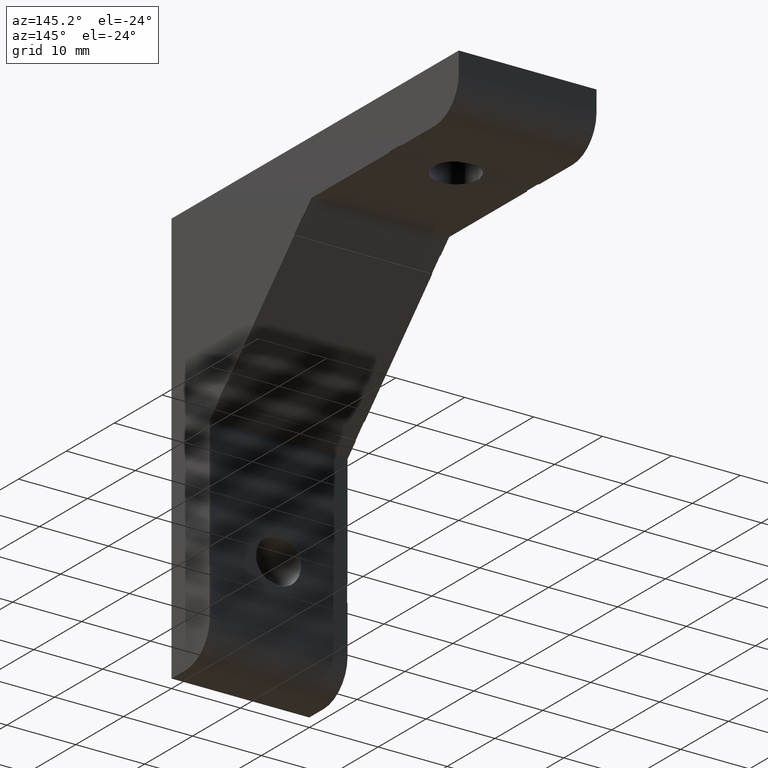
[diagram: clean part render]
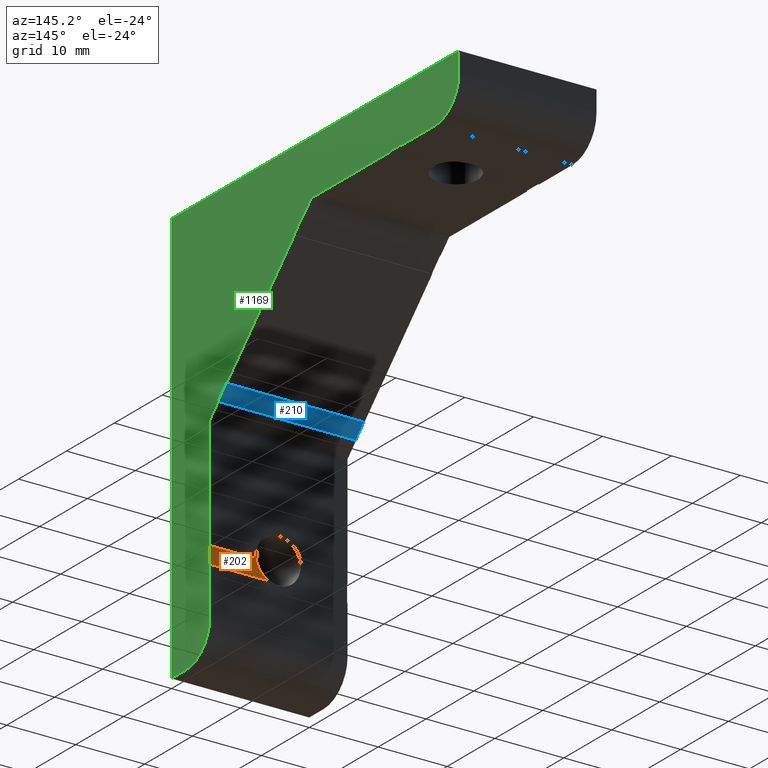
[diagram: same view with three faces highlighted in distinct colors, each labeled with its STEP entity id]
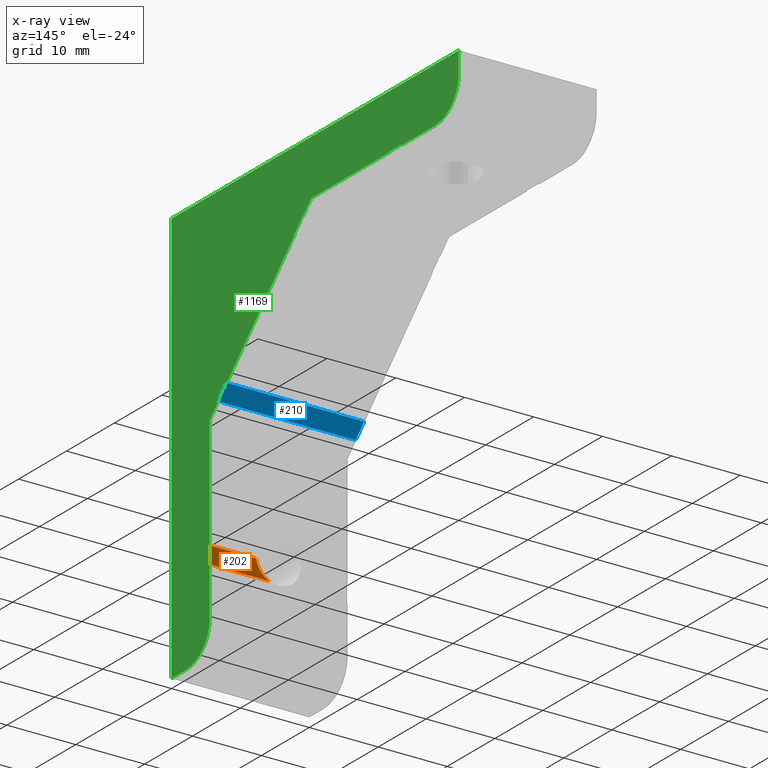
[diagram: x-ray of the same camera — body ghosted, the three highlighted faces saturated]
A machine part, auxiliary view with three faces highlighted in distinct colors.
The next image is the same camera in x-ray (body ghosted, the three faces saturated) — at least one of them is partly hidden behind the body in this view.
Their STEP definitions:

[orange] entity #202 — the highlighted planar face has unit normal (0, -1, 0).
#112 = EDGE_CURVE ( 'NONE', #948, #982, #1271, .T. ) ;
#202 = ADVANCED_FACE ( 'NONE', ( #1278 ), #917, .F. ) ;
#278 = CARTESIAN_POINT ( 'NONE',  ( 20.00000000000000000, 7.900000019999999300, -30.00000000000000000 ) ) ;
#279 = DIRECTION ( 'NONE',  ( -0.0000000000000000000, -0.0000000000000000000, -1.000000000000000000 ) ) ;
#324 = CARTESIAN_POINT ( 'NONE',  ( 15.59875000000000100, 7.900000000000000400, -48.00000000000000000 ) ) ;
#325 = DIRECTION ( 'NONE',  ( 1.000000000000000000, 0.0000000000000000000, 0.0000000000000000000 ) ) ;
#445 = CARTESIAN_POINT ( 'NONE',  ( 20.00000000000000000, 7.900000006666666700, -45.49999999666667300 ) ) ;
#446 = CARTESIAN_POINT ( 'NONE',  ( 11.24999999983503900, 7.899999999999999500, -48.00000000006872400 ) ) ;
#471 = CARTESIAN_POINT ( 'NONE',  ( 20.00000000000000000, 7.900000006666666700, -48.00000000000000700 ) ) ;
#479 = CARTESIAN_POINT ( 'NONE',  ( 13.21130814473605100, 7.899999999999999500, -45.49999999955189600 ) ) ;
#512 = CARTESIAN_POINT ( 'NONE',  ( 10.00000000000000000, 7.899999999999999500, -45.00000000000000000 ) ) ;
#513 = DIRECTION ( 'NONE',  ( -0.0000000000000000000, 1.000000000000000000, 0.0000000000000000000 ) ) ;
#514 = DIRECTION ( 'NONE',  ( 0.0000000000000000000, 0.0000000000000000000, 1.000000000000000000 ) ) ;
#589 = EDGE_LOOP ( 'NONE', ( #649, #650, #1222, #1223 ) ) ;
#649 = ORIENTED_EDGE ( 'NONE', *, *, #1004, .F. ) ;
#650 = ORIENTED_EDGE ( 'NONE', *, *, #112, .F. ) ;
#731 = AXIS2_PLACEMENT_3D ( 'NONE', #918, #920, #921 ) ;
#763 = AXIS2_PLACEMENT_3D ( 'NONE', #512, #513, #514 ) ;
#793 = EDGE_CURVE ( 'NONE', #948, #974, #1277, .T. ) ;
#814 = EDGE_CURVE ( 'NONE', #949, #974, #1085, .T. ) ;
#907 = CARTESIAN_POINT ( 'NONE',  ( 15.59875000000000100, 7.900000000000000400, -45.50000000000000000 ) ) ;
#908 = DIRECTION ( 'NONE',  ( -1.000000000000000000, -0.0000000000000000000, -0.0000000000000000000 ) ) ;
#917 = PLANE ( 'NONE',  #731 ) ;
#918 = CARTESIAN_POINT ( 'NONE',  ( 11.19750000000000200, 7.900000000000000400, -45.50000000000000000 ) ) ;
#920 = DIRECTION ( 'NONE',  ( 0.0000000000000000000, -1.000000000000000000, 0.0000000000000000000 ) ) ;
#921 = DIRECTION ( 'NONE',  ( 0.0000000000000000000, 0.0000000000000000000, -1.000000000000000000 ) ) ;
#948 = VERTEX_POINT ( 'NONE', #445 ) ;
#949 = VERTEX_POINT ( 'NONE', #446 ) ;
#974 = VERTEX_POINT ( 'NONE', #471 ) ;
#982 = VERTEX_POINT ( 'NONE', #479 ) ;
#1004 = EDGE_CURVE ( 'NONE', #982, #949, #1055, .T. ) ;
#1055 = CIRCLE ( 'NONE', #763, 3.249999999999996000 ) ;
#1079 = VECTOR ( 'NONE', #325, 1000.000000000000000 ) ;
#1085 = LINE ( 'NONE', #324, #1079 ) ;
#1222 = ORIENTED_EDGE ( 'NONE', *, *, #793, .T. ) ;
#1223 = ORIENTED_EDGE ( 'NONE', *, *, #814, .F. ) ;
#1257 = VECTOR ( 'NONE', #279, 1000.000000000000000 ) ;
#1271 = LINE ( 'NONE', #907, #1273 ) ;
#1273 = VECTOR ( 'NONE', #908, 1000.000000000000000 ) ;
#1277 = LINE ( 'NONE', #278, #1257 ) ;
#1278 = FACE_OUTER_BOUND ( 'NONE', #589, .T. ) ;

[blue] entity #210 — the highlighted planar face has unit normal (0, -0.7071, 0.7071).
#9 = CARTESIAN_POINT ( 'NONE',  ( 10.00000000000000000, 9.697056275000001300, -27.37472580500000100 ) ) ;
#10 = DIRECTION ( 'NONE',  ( 1.000000000000000000, 0.0000000000000000000, 0.0000000000000000000 ) ) ;
#128 = LINE ( 'NONE', #9, #129 ) ;
#129 = VECTOR ( 'NONE', #10, 1000.000000000000000 ) ;
#210 = ADVANCED_FACE ( 'NONE', ( #1290 ), #879, .F. ) ;
#320 = CARTESIAN_POINT ( 'NONE',  ( 0.0000000000000000000, 11.46482322000000100, -25.60695888000000400 ) ) ;
#321 = DIRECTION ( 'NONE',  ( 0.0000000000000000000, -0.7071067811865482400, -0.7071067811865469100 ) ) ;
#344 = CARTESIAN_POINT ( 'NONE',  ( 10.00000000000000000, 11.46482322800000000, -25.60695885200000500 ) ) ;
#345 = DIRECTION ( 'NONE',  ( -1.000000000000000000, -0.0000000000000000000, -0.0000000000000000000 ) ) ;
#408 = CARTESIAN_POINT ( 'NONE',  ( 19.99999999999999300, 11.46482322800000000, -25.60695885200000500 ) ) ;
#409 = DIRECTION ( 'NONE',  ( 0.0000000000000000000, -0.7071067811865482400, -0.7071067811865469100 ) ) ;
#440 = CARTESIAN_POINT ( 'NONE',  ( 0.0000000000000000000, 11.46482323300000100, -25.60695885700000600 ) ) ;
#441 = CARTESIAN_POINT ( 'NONE',  ( 19.99999999999999600, 9.697056275000001300, -27.37472580500000100 ) ) ;
#447 = CARTESIAN_POINT ( 'NONE',  ( 19.99999999999999600, 11.46482322800000000, -25.60695885200000500 ) ) ;
#473 = CARTESIAN_POINT ( 'NONE',  ( 0.0000000000000000000, 9.697056280000001700, -27.37472581000000100 ) ) ;
#629 = EDGE_LOOP ( 'NONE', ( #645, #644, #643, #642 ) ) ;
#642 = ORIENTED_EDGE ( 'NONE', *, *, #855, .T. ) ;
#643 = ORIENTED_EDGE ( 'NONE', *, *, #824, .F. ) ;
#644 = ORIENTED_EDGE ( 'NONE', *, *, #812, .F. ) ;
#645 = ORIENTED_EDGE ( 'NONE', *, *, #1014, .F. ) ;
#739 = AXIS2_PLACEMENT_3D ( 'NONE', #878, #877, #876 ) ;
#812 = EDGE_CURVE ( 'NONE', #943, #976, #1096, .T. ) ;
#824 = EDGE_CURVE ( 'NONE', #950, #943, #1149, .T. ) ;
#855 = EDGE_CURVE ( 'NONE', #950, #944, #1077, .T. ) ;
#876 = DIRECTION ( 'NONE',  ( 0.0000000000000000000, -0.7071067811865482400, -0.7071067811865468000 ) ) ;
#877 = DIRECTION ( 'NONE',  ( 0.0000000000000000000, -0.7071067811865468000, 0.7071067811865482400 ) ) ;
#878 = CARTESIAN_POINT ( 'NONE',  ( 0.0000000000000000000, 11.46482322800000000, -25.60695885200000500 ) ) ;
#879 = PLANE ( 'NONE',  #739 ) ;
#943 = VERTEX_POINT ( 'NONE', #440 ) ;
#944 = VERTEX_POINT ( 'NONE', #441 ) ;
#950 = VERTEX_POINT ( 'NONE', #447 ) ;
#976 = VERTEX_POINT ( 'NONE', #473 ) ;
#1014 = EDGE_CURVE ( 'NONE', #976, #944, #128, .T. ) ;
#1031 = VECTOR ( 'NONE', #409, 1000.000000000000000 ) ;
#1077 = LINE ( 'NONE', #408, #1031 ) ;
#1094 = VECTOR ( 'NONE', #321, 1000.000000000000000 ) ;
#1096 = LINE ( 'NONE', #320, #1094 ) ;
#1148 = VECTOR ( 'NONE', #345, 1000.000000000000000 ) ;
#1149 = LINE ( 'NONE', #344, #1148 ) ;
#1290 = FACE_OUTER_BOUND ( 'NONE', #629, .T. ) ;

[green] entity #1169 — the highlighted planar face has unit normal (-1, 0, 0).
#3 = CARTESIAN_POINT ( 'NONE',  ( 20.00000000000000000, 11.50017856700000100, -25.64231419100000100 ) ) ;
#4 = DIRECTION ( 'NONE',  ( -0.0000000000000000000, 0.7071067811865822100, -0.7071067811865128200 ) ) ;
#21 = PLANE ( 'NONE',  #769 ) ;
#22 = CARTESIAN_POINT ( 'NONE',  ( 20.00000000000000000, 0.0000000000000000000, -60.00000000000000000 ) ) ;
#23 = DIRECTION ( 'NONE',  ( -1.000000000000000000, 0.0000000000000000000, 0.0000000000000000000 ) ) ;
#24 = DIRECTION ( 'NONE',  ( 0.0000000000000000000, 0.0000000000000000000, 1.000000000000000000 ) ) ;
#113 = EDGE_CURVE ( 'NONE', #948, #958, #1274, .T. ) ;
#136 = FACE_OUTER_BOUND ( 'NONE', #586, .T. ) ;
#242 = CARTESIAN_POINT ( 'NONE',  ( 20.00000000000000000, 9.732411614000000100, -27.41008114399999600 ) ) ;
#243 = DIRECTION ( 'NONE',  ( -0.0000000000000000000, -0.7071067811865735500, 0.7071067811865214800 ) ) ;
#251 = CARTESIAN_POINT ( 'NONE',  ( 20.00000000000000400, 30.00000000000000000, -7.999999979999996600 ) ) ;
#252 = DIRECTION ( 'NONE',  ( -0.0000000000000000000, -1.000000000000000000, -0.0000000000000000000 ) ) ;
#257 = CARTESIAN_POINT ( 'NONE',  ( 20.00000000000000000, 48.00000000000000000, -30.00000000000000000 ) ) ;
#258 = DIRECTION ( 'NONE',  ( 0.0000000000000000000, 0.0000000000000000000, 1.000000000000000000 ) ) ;
#276 = CARTESIAN_POINT ( 'NONE',  ( 20.00000000000000000, 27.41008114399999600, -9.732411614000000100 ) ) ;
#277 = DIRECTION ( 'NONE',  ( -0.0000000000000000000, 0.7071067811865214800, -0.7071067811865735500 ) ) ;
#278 = CARTESIAN_POINT ( 'NONE',  ( 20.00000000000000000, 7.900000019999999300, -30.00000000000000000 ) ) ;
#279 = DIRECTION ( 'NONE',  ( -0.0000000000000000000, -0.0000000000000000000, -1.000000000000000000 ) ) ;
#282 = CARTESIAN_POINT ( 'NONE',  ( 20.00000000000000000, 7.999999980000001900, -30.00000000000000000 ) ) ;
#283 = DIRECTION ( 'NONE',  ( -0.0000000000000000000, -0.0000000000000000000, -1.000000000000000000 ) ) ;
#293 = CARTESIAN_POINT ( 'NONE',  ( 20.00000000000000000, 3.000000000000000000, -55.00000000000000000 ) ) ;
#294 = DIRECTION ( 'NONE',  ( -1.000000000000000000, -3.469446951953616700E-016, -0.0000000000000000000 ) ) ;
#295 = DIRECTION ( 'NONE',  ( 6.938893903907232300E-016, -1.000000000000000000, 0.0000000000000000000 ) ) ;
#296 = CARTESIAN_POINT ( 'NONE',  ( 20.00000000000000000, 30.00000000000000000, -60.00000000000000000 ) ) ;
#297 = DIRECTION ( 'NONE',  ( -0.0000000000000000000, -1.000000000000000000, -0.0000000000000000000 ) ) ;
#309 = CARTESIAN_POINT ( 'NONE',  ( 20.00000000000000000, 55.00000000000000000, -3.000000000000000000 ) ) ;
#310 = DIRECTION ( 'NONE',  ( -1.000000000000000000, -3.469446951953613700E-016, -0.0000000000000000000 ) ) ;
#311 = DIRECTION ( 'NONE',  ( 0.0000000000000000000, -1.000000000000000000, 0.0000000000000000000 ) ) ;
#314 = CARTESIAN_POINT ( 'NONE',  ( 19.99999999999999300, 27.37472580500000100, -9.697056275000001300 ) ) ;
#315 = DIRECTION ( 'NONE',  ( 0.0000000000000000000, -0.7071067811865469100, -0.7071067811865482400 ) ) ;
#316 = CARTESIAN_POINT ( 'NONE',  ( 19.99999999999999300, 11.53553390600000100, -25.67766952999999900 ) ) ;
#317 = DIRECTION ( 'NONE',  ( -0.0000000000000000000, -0.7071067811865474600, -0.7071067811865474600 ) ) ;
#326 = CARTESIAN_POINT ( 'NONE',  ( 20.00000000000000000, 7.950000000000000200, -48.00000000000000000 ) ) ;
#327 = DIRECTION ( 'NONE',  ( -0.0000000000000000000, -1.000000000000000000, -0.0000000000000000000 ) ) ;
#342 = CARTESIAN_POINT ( 'NONE',  ( 20.00000000000000000, 25.64231419100000100, -11.50017856700000100 ) ) ;
#343 = DIRECTION ( 'NONE',  ( -0.0000000000000000000, -0.7071067811865128200, 0.7071067811865822100 ) ) ;
#354 = CARTESIAN_POINT ( 'NONE',  ( 20.00000000000000000, 60.00000000000000000, -30.00000000000000000 ) ) ;
#355 = DIRECTION ( 'NONE',  ( -0.0000000000000000000, -0.0000000000000000000, -1.000000000000000000 ) ) ;
#356 = CARTESIAN_POINT ( 'NONE',  ( 20.00000000000000000, 0.0000000000000000000, -30.00000000000000000 ) ) ;
#357 = DIRECTION ( 'NONE',  ( 0.0000000000000000000, 0.0000000000000000000, 1.000000000000000000 ) ) ;
#364 = CARTESIAN_POINT ( 'NONE',  ( 20.00000000000000400, 27.44543648299999500, -9.767766953000000600 ) ) ;
#365 = DIRECTION ( 'NONE',  ( -0.0000000000000000000, -0.7071067811865486800, -0.7071067811865464600 ) ) ;
#368 = CARTESIAN_POINT ( 'NONE',  ( 20.00000000000000000, 37.35660171799999300, -8.000000000000000000 ) ) ;
#369 = DIRECTION ( 'NONE',  ( -0.0000000000000000000, 1.000000000000000000, -0.0000000000000000000 ) ) ;
#370 = CARTESIAN_POINT ( 'NONE',  ( 20.00000000000000000, 45.50000000000000000, -7.950000000000000200 ) ) ;
#371 = DIRECTION ( 'NONE',  ( -0.0000000000000000000, -0.0000000000000000000, 1.000000000000000000 ) ) ;
#372 = CARTESIAN_POINT ( 'NONE',  ( 20.00000000000000000, 46.75000000000000000, -7.900000000000000400 ) ) ;
#373 = DIRECTION ( 'NONE',  ( 0.0000000000000000000, 1.000000000000000000, 0.0000000000000000000 ) ) ;
#374 = CARTESIAN_POINT ( 'NONE',  ( 20.00000000000000000, 30.00000000000000000, 0.0000000000000000000 ) ) ;
#375 = DIRECTION ( 'NONE',  ( -0.0000000000000000000, -1.000000000000000000, -0.0000000000000000000 ) ) ;
#408 = CARTESIAN_POINT ( 'NONE',  ( 19.99999999999999300, 11.46482322800000000, -25.60695885200000500 ) ) ;
#409 = DIRECTION ( 'NONE',  ( 0.0000000000000000000, -0.7071067811865482400, -0.7071067811865469100 ) ) ;
#414 = CARTESIAN_POINT ( 'NONE',  ( 20.00000000000000400, 8.000000000000000000, -29.21320343600000100 ) ) ;
#415 = DIRECTION ( 'NONE',  ( -0.0000000000000000000, -0.7071067811865464600, -0.7071067811865486800 ) ) ;
#418 = CARTESIAN_POINT ( 'NONE',  ( 20.00000000000000000, 7.999999980000001900, -30.00000000000000000 ) ) ;
#419 = DIRECTION ( 'NONE',  ( -0.0000000000000000000, -0.0000000000000000000, -1.000000000000000000 ) ) ;
#421 = CARTESIAN_POINT ( 'NONE',  ( 20.00000000000000400, 29.21320343600000100, -8.000000000000000000 ) ) ;
#424 = CARTESIAN_POINT ( 'NONE',  ( 19.99999999999999600, 11.53553390600000100, -25.67766952999999900 ) ) ;
#425 = CARTESIAN_POINT ( 'NONE',  ( 20.00000000000000400, 7.999999990000000900, -29.21320344600000100 ) ) ;
#429 = CARTESIAN_POINT ( 'NONE',  ( 20.00000000000000400, 27.44543648299999500, -9.767766953000000600 ) ) ;
#431 = CARTESIAN_POINT ( 'NONE',  ( 20.00000000000000400, 9.767766953000000600, -27.44543648299999500 ) ) ;
#432 = CARTESIAN_POINT ( 'NONE',  ( 20.00000000000000000, 45.50000000000000700, -7.900000000000000400 ) ) ;
#434 = CARTESIAN_POINT ( 'NONE',  ( 20.00000000000000000, 0.0000000000000000000, -60.00000000000000000 ) ) ;
#435 = CARTESIAN_POINT ( 'NONE',  ( 20.00000000000000000, 45.50000000000000700, -8.000000000000000000 ) ) ;
#441 = CARTESIAN_POINT ( 'NONE',  ( 19.99999999999999600, 9.697056275000001300, -27.37472580500000100 ) ) ;
#444 = CARTESIAN_POINT ( 'NONE',  ( 19.99999999999999600, 60.00000000000000000, -3.000000000000000000 ) ) ;
#445 = CARTESIAN_POINT ( 'NONE',  ( 20.00000000000000000, 7.900000006666666700, -45.49999999666667300 ) ) ;
#447 = CARTESIAN_POINT ( 'NONE',  ( 19.99999999999999600, 11.46482322800000000, -25.60695885200000500 ) ) ;
#448 = CARTESIAN_POINT ( 'NONE',  ( 20.00000000000000000, 3.000000000000000000, -60.00000000000000000 ) ) ;
#449 = CARTESIAN_POINT ( 'NONE',  ( 20.00000000000000000, 55.00000000000000000, -7.999999989999999200 ) ) ;
#450 = CARTESIAN_POINT ( 'NONE',  ( 19.99999999999999600, 25.67766952999999600, -11.53553390600000300 ) ) ;
#451 = CARTESIAN_POINT ( 'NONE',  ( 19.99999999999999600, 25.60695885200000500, -11.46482322800000000 ) ) ;
#452 = CARTESIAN_POINT ( 'NONE',  ( 19.99999999999999600, 7.999999990000000900, -55.00000000051275600 ) ) ;
#454 = CARTESIAN_POINT ( 'NONE',  ( 19.99999999999999600, 27.37472580500000100, -9.697056275000001300 ) ) ;
#455 = CARTESIAN_POINT ( 'NONE',  ( 20.00000000000000000, 7.999999993333334600, -45.50000000000000700 ) ) ;
#459 = CARTESIAN_POINT ( 'NONE',  ( 20.00000000000000400, 48.00000000000000700, -7.999999986666665600 ) ) ;
#468 = CARTESIAN_POINT ( 'NONE',  ( 20.00000000000000000, 7.999999993333334600, -48.00000000000000700 ) ) ;
#470 = CARTESIAN_POINT ( 'NONE',  ( 20.00000000000000000, 60.00000000000000000, 0.0000000000000000000 ) ) ;
#471 = CARTESIAN_POINT ( 'NONE',  ( 20.00000000000000000, 7.900000006666666700, -48.00000000000000700 ) ) ;
#483 = CARTESIAN_POINT ( 'NONE',  ( 20.00000000000000000, 0.0000000000000000000, 0.0000000000000000000 ) ) ;
#487 = CARTESIAN_POINT ( 'NONE',  ( 20.00000000000000000, 48.00000000000000700, -7.900000006666666700 ) ) ;
#562 = ORIENTED_EDGE ( 'NONE', *, *, #800, .F. ) ;
#563 = ORIENTED_EDGE ( 'NONE', *, *, #795, .F. ) ;
#564 = ORIENTED_EDGE ( 'NONE', *, *, #815, .T. ) ;
#565 = ORIENTED_EDGE ( 'NONE', *, *, #793, .F. ) ;
#586 = EDGE_LOOP ( 'NONE', ( #1201, #1202, #1203, #1204, #1205, #1206, #1207, #1208, #1209, #1210, #1211, #1212, #1213, #1214, #1215, #1216, #1217, #1218, #1219, #1220, #1221, #562, #563, #564, #565 ) ) ;
#717 = EDGE_CURVE ( 'NONE', #895, #944, #1319, .T. ) ;
#721 = EDGE_CURVE ( 'NONE', #952, #962, #1329, .T. ) ;
#724 = EDGE_CURVE ( 'NONE', #962, #990, #1315, .T. ) ;
#754 = AXIS2_PLACEMENT_3D ( 'NONE', #293, #294, #295 ) ;
#756 = AXIS2_PLACEMENT_3D ( 'NONE', #309, #310, #311 ) ;
#769 = AXIS2_PLACEMENT_3D ( 'NONE', #22, #23, #24 ) ;
#792 = EDGE_CURVE ( 'NONE', #957, #893, #1254, .T. ) ;
#793 = EDGE_CURVE ( 'NONE', #948, #974, #1277, .T. ) ;
#795 = EDGE_CURVE ( 'NONE', #971, #955, #1084, .T. ) ;
#800 = EDGE_CURVE ( 'NONE', #955, #951, #1152, .T. ) ;
#801 = EDGE_CURVE ( 'NONE', #951, #899, #1123, .T. ) ;
#807 = EDGE_CURVE ( 'NONE', #947, #952, #1114, .T. ) ;
#809 = EDGE_CURVE ( 'NONE', #957, #954, #1110, .T. ) ;
#810 = EDGE_CURVE ( 'NONE', #953, #885, #1106, .T. ) ;
#815 = EDGE_CURVE ( 'NONE', #971, #974, #1080, .T. ) ;
#823 = EDGE_CURVE ( 'NONE', #953, #954, #1153, .T. ) ;
#829 = EDGE_CURVE ( 'NONE', #973, #947, #1133, .T. ) ;
#830 = EDGE_CURVE ( 'NONE', #899, #986, #1131, .T. ) ;
#834 = EDGE_CURVE ( 'NONE', #881, #893, #1021, .T. ) ;
#836 = EDGE_CURVE ( 'NONE', #881, #901, #1018, .T. ) ;
#837 = EDGE_CURVE ( 'NONE', #901, #896, #1020, .T. ) ;
#838 = EDGE_CURVE ( 'NONE', #896, #990, #1024, .T. ) ;
#839 = EDGE_CURVE ( 'NONE', #973, #986, #1028, .T. ) ;
#855 = EDGE_CURVE ( 'NONE', #950, #944, #1077, .T. ) ;
#858 = EDGE_CURVE ( 'NONE', #895, #886, #1073, .T. ) ;
#860 = EDGE_CURVE ( 'NONE', #886, #958, #1069, .T. ) ;
#881 = VERTEX_POINT ( 'NONE', #421 ) ;
#885 = VERTEX_POINT ( 'NONE', #424 ) ;
#886 = VERTEX_POINT ( 'NONE', #425 ) ;
#893 = VERTEX_POINT ( 'NONE', #429 ) ;
#895 = VERTEX_POINT ( 'NONE', #431 ) ;
#896 = VERTEX_POINT ( 'NONE', #432 ) ;
#899 = VERTEX_POINT ( 'NONE', #434 ) ;
#901 = VERTEX_POINT ( 'NONE', #435 ) ;
#910 = CARTESIAN_POINT ( 'NONE',  ( 20.00000000000000000, 7.950000000000000200, -45.50000000000000000 ) ) ;
#911 = DIRECTION ( 'NONE',  ( 0.0000000000000000000, 1.000000000000000000, 0.0000000000000000000 ) ) ;
#944 = VERTEX_POINT ( 'NONE', #441 ) ;
#947 = VERTEX_POINT ( 'NONE', #444 ) ;
#948 = VERTEX_POINT ( 'NONE', #445 ) ;
#950 = VERTEX_POINT ( 'NONE', #447 ) ;
#951 = VERTEX_POINT ( 'NONE', #448 ) ;
#952 = VERTEX_POINT ( 'NONE', #449 ) ;
#953 = VERTEX_POINT ( 'NONE', #450 ) ;
#954 = VERTEX_POINT ( 'NONE', #451 ) ;
#955 = VERTEX_POINT ( 'NONE', #452 ) ;
#957 = VERTEX_POINT ( 'NONE', #454 ) ;
#958 = VERTEX_POINT ( 'NONE', #455 ) ;
#962 = VERTEX_POINT ( 'NONE', #459 ) ;
#971 = VERTEX_POINT ( 'NONE', #468 ) ;
#973 = VERTEX_POINT ( 'NONE', #470 ) ;
#974 = VERTEX_POINT ( 'NONE', #471 ) ;
#986 = VERTEX_POINT ( 'NONE', #483 ) ;
#990 = VERTEX_POINT ( 'NONE', #487 ) ;
#1011 = EDGE_CURVE ( 'NONE', #950, #885, #1050, .T. ) ;
#1018 = LINE ( 'NONE', #368, #1019 ) ;
#1019 = VECTOR ( 'NONE', #369, 1000.000000000000000 ) ;
#1020 = LINE ( 'NONE', #370, #1025 ) ;
#1021 = LINE ( 'NONE', #364, #1026 ) ;
#1024 = LINE ( 'NONE', #372, #1029 ) ;
#1025 = VECTOR ( 'NONE', #371, 1000.000000000000000 ) ;
#1026 = VECTOR ( 'NONE', #365, 999.9999999999998900 ) ;
#1028 = LINE ( 'NONE', #374, #1115 ) ;
#1029 = VECTOR ( 'NONE', #373, 1000.000000000000000 ) ;
#1031 = VECTOR ( 'NONE', #409, 1000.000000000000000 ) ;
#1049 = VECTOR ( 'NONE', #4, 1000.000000000000200 ) ;
#1050 = LINE ( 'NONE', #3, #1049 ) ;
#1068 = VECTOR ( 'NONE', #419, 1000.000000000000000 ) ;
#1069 = LINE ( 'NONE', #418, #1068 ) ;
#1072 = VECTOR ( 'NONE', #415, 999.9999999999998900 ) ;
#1073 = LINE ( 'NONE', #414, #1072 ) ;
#1077 = LINE ( 'NONE', #408, #1031 ) ;
#1080 = LINE ( 'NONE', #326, #1082 ) ;
#1082 = VECTOR ( 'NONE', #327, 1000.000000000000000 ) ;
#1084 = LINE ( 'NONE', #282, #1088 ) ;
#1088 = VECTOR ( 'NONE', #283, 1000.000000000000000 ) ;
#1104 = VECTOR ( 'NONE', #317, 1000.000000000000100 ) ;
#1106 = LINE ( 'NONE', #316, #1104 ) ;
#1108 = VECTOR ( 'NONE', #315, 1000.000000000000000 ) ;
#1110 = LINE ( 'NONE', #314, #1108 ) ;
#1114 = CIRCLE ( 'NONE', #756, 4.999999999999997300 ) ;
#1115 = VECTOR ( 'NONE', #375, 1000.000000000000000 ) ;
#1123 = LINE ( 'NONE', #296, #1150 ) ;
#1130 = VECTOR ( 'NONE', #357, 1000.000000000000000 ) ;
#1131 = LINE ( 'NONE', #356, #1130 ) ;
#1132 = VECTOR ( 'NONE', #355, 1000.000000000000000 ) ;
#1133 = LINE ( 'NONE', #354, #1132 ) ;
#1150 = VECTOR ( 'NONE', #297, 1000.000000000000000 ) ;
#1151 = VECTOR ( 'NONE', #343, 1000.000000000000200 ) ;
#1152 = CIRCLE ( 'NONE', #754, 4.999999999999997300 ) ;
#1153 = LINE ( 'NONE', #342, #1151 ) ;
#1169 = ADVANCED_FACE ( 'NONE', ( #136 ), #21, .F. ) ;
#1201 = ORIENTED_EDGE ( 'NONE', *, *, #113, .T. ) ;
#1202 = ORIENTED_EDGE ( 'NONE', *, *, #860, .F. ) ;
#1203 = ORIENTED_EDGE ( 'NONE', *, *, #858, .F. ) ;
#1204 = ORIENTED_EDGE ( 'NONE', *, *, #717, .T. ) ;
#1205 = ORIENTED_EDGE ( 'NONE', *, *, #855, .F. ) ;
#1206 = ORIENTED_EDGE ( 'NONE', *, *, #1011, .T. ) ;
#1207 = ORIENTED_EDGE ( 'NONE', *, *, #810, .F. ) ;
#1208 = ORIENTED_EDGE ( 'NONE', *, *, #823, .T. ) ;
#1209 = ORIENTED_EDGE ( 'NONE', *, *, #809, .F. ) ;
#1210 = ORIENTED_EDGE ( 'NONE', *, *, #792, .T. ) ;
#1211 = ORIENTED_EDGE ( 'NONE', *, *, #834, .F. ) ;
#1212 = ORIENTED_EDGE ( 'NONE', *, *, #836, .T. ) ;
#1213 = ORIENTED_EDGE ( 'NONE', *, *, #837, .T. ) ;
#1214 = ORIENTED_EDGE ( 'NONE', *, *, #838, .T. ) ;
#1215 = ORIENTED_EDGE ( 'NONE', *, *, #724, .F. ) ;
#1216 = ORIENTED_EDGE ( 'NONE', *, *, #721, .F. ) ;
#1217 = ORIENTED_EDGE ( 'NONE', *, *, #807, .F. ) ;
#1218 = ORIENTED_EDGE ( 'NONE', *, *, #829, .F. ) ;
#1219 = ORIENTED_EDGE ( 'NONE', *, *, #839, .T. ) ;
#1220 = ORIENTED_EDGE ( 'NONE', *, *, #830, .F. ) ;
#1221 = ORIENTED_EDGE ( 'NONE', *, *, #801, .F. ) ;
#1246 = VECTOR ( 'NONE', #277, 1000.000000000000000 ) ;
#1254 = LINE ( 'NONE', #276, #1246 ) ;
#1257 = VECTOR ( 'NONE', #279, 1000.000000000000000 ) ;
#1274 = LINE ( 'NONE', #910, #1275 ) ;
#1275 = VECTOR ( 'NONE', #911, 1000.000000000000000 ) ;
#1277 = LINE ( 'NONE', #278, #1257 ) ;
#1315 = LINE ( 'NONE', #257, #1321 ) ;
#1319 = LINE ( 'NONE', #242, #1320 ) ;
#1320 = VECTOR ( 'NONE', #243, 1000.000000000000000 ) ;
#1321 = VECTOR ( 'NONE', #258, 1000.000000000000000 ) ;
#1329 = LINE ( 'NONE', #251, #1330 ) ;
#1330 = VECTOR ( 'NONE', #252, 1000.000000000000000 ) ;